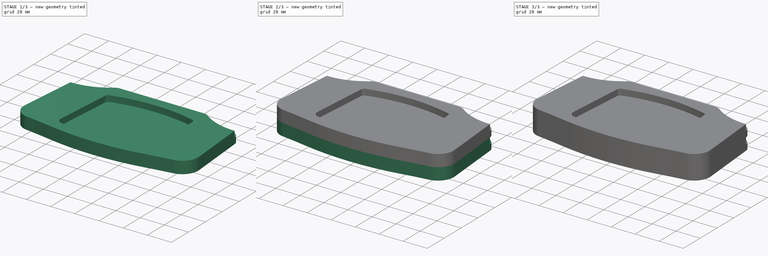
[diagram: build sequence overview — one tinted view per stage of 3, left to right]
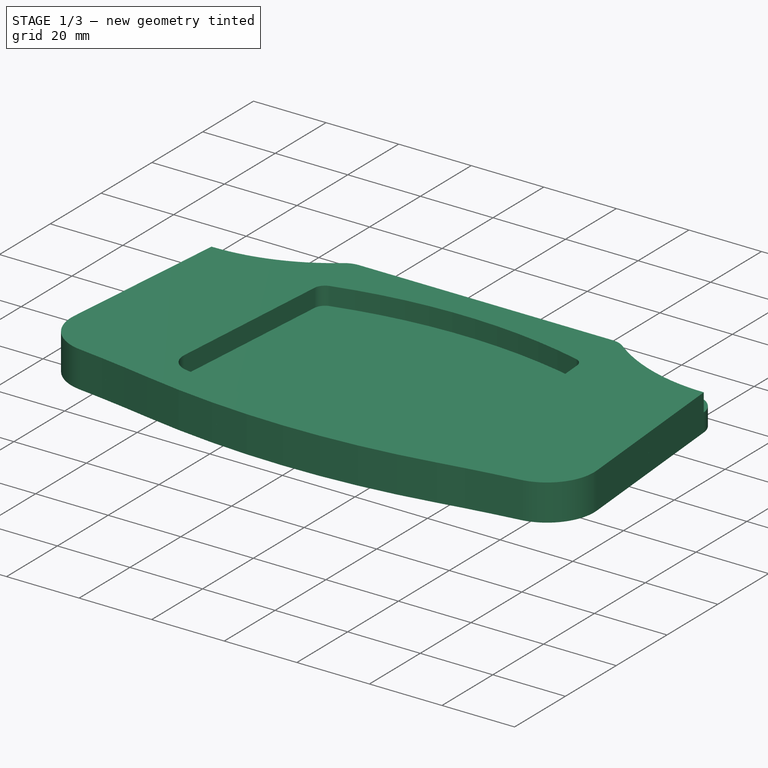
[diagram: stage 1 of 3 — iso view after this stage's code; geometry added in this stage tinted green]
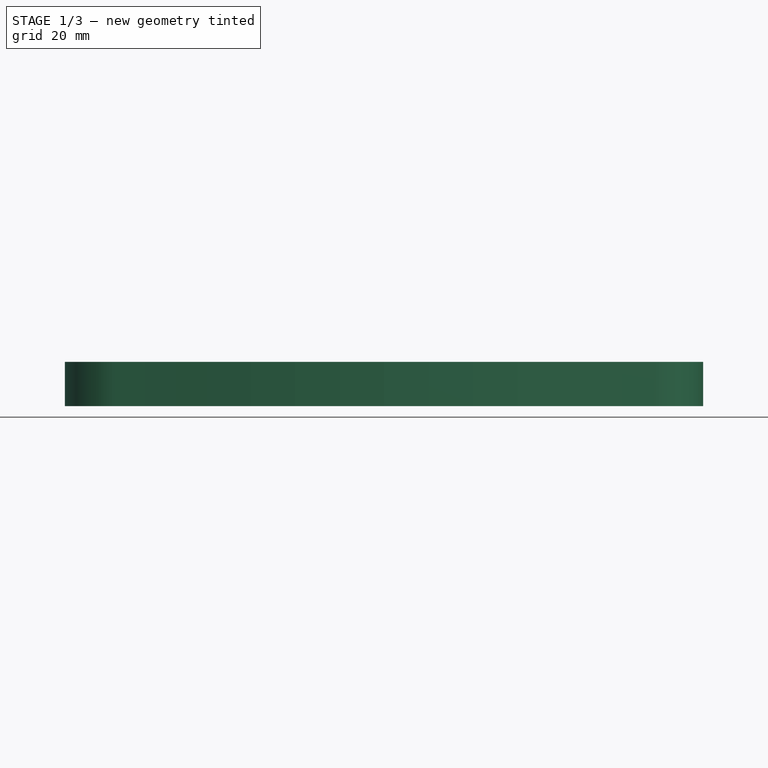
[diagram: stage 1 of 3 — front view after this stage's code; geometry added in this stage tinted green]
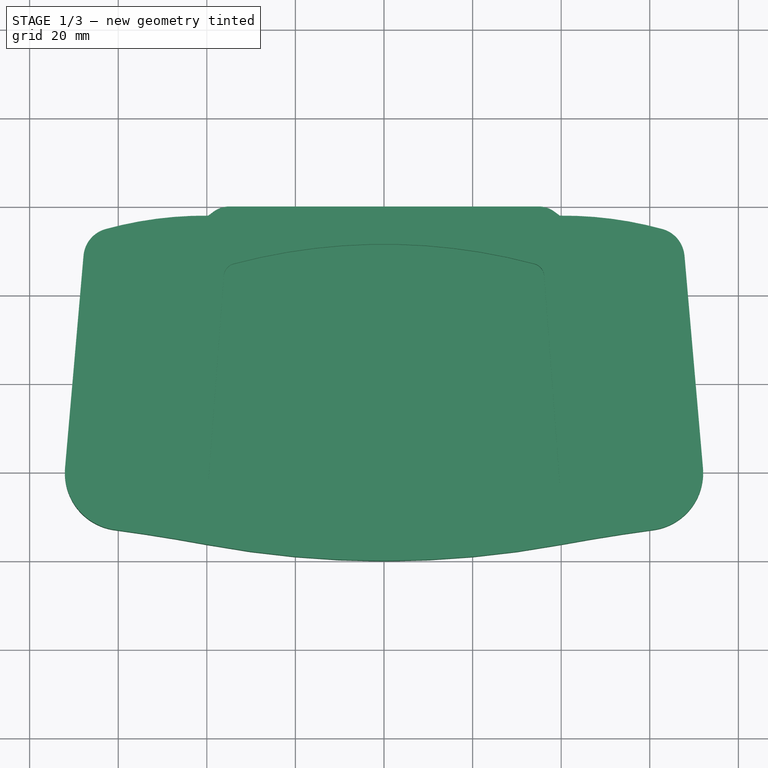
[diagram: stage 1 of 3 — top view after this stage's code; geometry added in this stage tinted green]
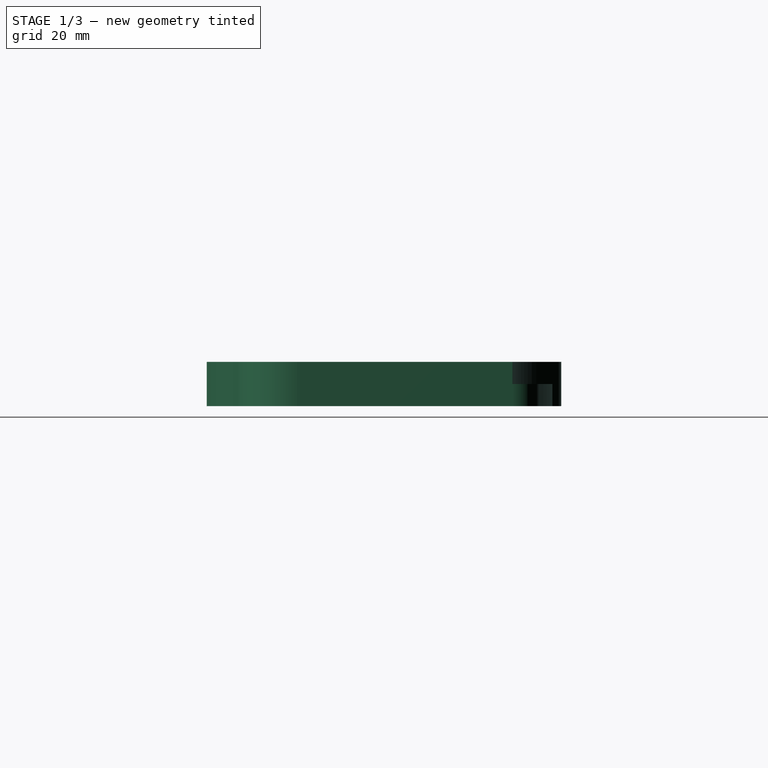
[diagram: stage 1 of 3 — right view after this stage's code; geometry added in this stage tinted green]
FCSTD DOCUMENT  (FreeCAD 0.20R29177 +426 (Git))
Label: GBA Icon
License: Creative Commons Attribution-NonCommercial-ShareAlike
LicenseURL: http://creativecommons.org/licenses/by-nc-sa/4.0/
objects: Sketcher::SketchObject×7, PartDesign::Pad×4, PartDesign::Body×3, PartDesign::Pocket×2, PartDesign::Fillet×1
note: 24 computed .brp shape members not serialized (recipe doc carries the construction recipe); baked Part::Feature solids carry a one-line shape summary decoded from their .brp

FEATURE [Sketcher::SketchObject] Sketch004  label="GBA Middle"
  ExternalGeometry = -> [Pocket001]
  FullyConstrained = true
  MapMode = 5
  Placement = pos=(0,0,10) rot=(0,0,1;0rad)
  Support = -> [Pocket001]
  sketch-geometry (22):
    g0: LineSegment StartX=-72 StartY=21.0109 StartZ=0 EndX=-67.8267 EndY=68.9925 EndZ=0
    g1: LineSegment StartX=72 StartY=21.0109 StartZ=0 EndX=67.8267 EndY=68.9925 EndZ=0
    g2: LineSegment StartX=34.9119 StartY=80 StartZ=0 EndX=-34.9119 EndY=80 EndZ=0
    g3: LineSegment StartX=-36.1577 StartY=64.3908 StartZ=0 EndX=-39.6184 EndY=18.1045 EndZ=0
    g4: LineSegment StartX=39.6184 StartY=18.1045 StartZ=0 EndX=36.1577 EndY=64.3907 EndZ=0
    g5: ArcOfCircle CenterX=33.1661 CenterY=64.1671 CenterZ=0 NormalX=0 NormalY=0 NormalZ=1 AngleXU=0 Radius=3 StartAngle=0.0746275 EndAngle=1.31098
    g6: ArcOfCircle CenterX=34.9119 CenterY=74 CenterZ=0 NormalX=0 NormalY=0 NormalZ=1 AngleXU=0 Radius=6 StartAngle=0.920899 EndAngle=1.5708
    g7: ArcOfCircle CenterX=-33.1661 CenterY=64.1671 CenterZ=0 NormalX=0 NormalY=0 NormalZ=1 AngleXU=0 Radius=3 StartAngle=1.83061 EndAngle=3.06696
    g8: ArcOfCircle CenterX=-34.9119 CenterY=74 CenterZ=0 NormalX=0 NormalY=0 NormalZ=1 AngleXU=0 Radius=6 StartAngle=1.5708 EndAngle=2.22069
    g9: ArcOfCircle CenterX=-67.5876 CenterY=116.992 CenterZ=0 NormalX=0 NormalY=0 NormalZ=1 AngleXU=0 Radius=48 StartAngle=4.70741 EndAngle=5.33543
    g10: ArcOfCircle CenterX=67.5876 CenterY=116.992 CenterZ=0 NormalX=0 NormalY=0 NormalZ=1 AngleXU=0 Radius=48 StartAngle=4.08935 EndAngle=4.71737
    g11: ArcOfCircle CenterX=59.0489 CenterY=19.8845 CenterZ=0 NormalX=0 NormalY=0 NormalZ=1 AngleXU=0 Radius=13 StartAngle=4.84579 EndAngle=6.36994
    g12: ArcOfCircle CenterX=33.6351 CenterY=17.6572 CenterZ=0 NormalX=0 NormalY=0 NormalZ=1 AngleXU=0 Radius=6 StartAngle=4.929 EndAngle=6.35781
    g13: ArcOfCircle CenterX=-33.6351 CenterY=17.6572 CenterZ=0 NormalX=0 NormalY=0 NormalZ=1 AngleXU=0 Radius=6 StartAngle=3.06696 EndAngle=4.49578
    g14: ArcOfCircle CenterX=-59.0489 CenterY=19.8845 CenterZ=0 NormalX=0 NormalY=0 NormalZ=1 AngleXU=0 Radius=13 StartAngle=3.05483 EndAngle=4.57898
    g15: ArcOfCircle CenterX=-4.01e-14 CenterY=219.231 CenterZ=0 NormalX=0 NormalY=0 NormalZ=1 AngleXU=0 Radius=219.231 StartAngle=4.52891 EndAngle=4.89587
    g16: ArcOfCircle CenterX=1.135e-13 CenterY=170.5 CenterZ=0 NormalX=0 NormalY=0 NormalZ=1 AngleXU=0 Radius=162.5 StartAngle=4.49578 EndAngle=4.929
    g17: ArcOfCircle CenterX=-2.44e-14 CenterY=-60.6 CenterZ=0 NormalX=0 NormalY=0 NormalZ=1 AngleXU=0 Radius=132.1 StartAngle=1.31098 EndAngle=1.83061
    g18: ArcOfCircle CenterX=-116.672 CenterY=-409.49 CenterZ=0 NormalX=0 NormalY=0 NormalZ=1 AngleXU=0 Radius=420.224 StartAngle=1.38731 EndAngle=1.43739
    g19: ArcOfCircle CenterX=116.672 CenterY=-409.49 CenterZ=0 NormalX=0 NormalY=0 NormalZ=1 AngleXU=0 Radius=420.224 StartAngle=1.7042 EndAngle=1.75428
    g20: ArcOfCircle CenterX=-67.5876 CenterY=116.992 CenterZ=0 NormalX=0 NormalY=0 NormalZ=1 AngleXU=0 Radius=48 StartAngle=5.33543 EndAngle=5.36229
    g21: ArcOfCircle CenterX=67.5876 CenterY=116.992 CenterZ=0 NormalX=0 NormalY=0 NormalZ=1 AngleXU=0 Radius=48 StartAngle=4.06249 EndAngle=4.08935
  constraints (61):
    c: Coincident(g0,g-17)
    c: Coincident(g0,g-16)
    c: Coincident(g1,g-22)
    c: Coincident(g1,g-22)
    c: Coincident(g2,g-13)
    c: Coincident(g2,g-14)
    c: Coincident(g3,g-5)
    c: Coincident(g3,g-6)
    c: Coincident(g4,g-9)
    c: Coincident(g4,g-10)
    c: Coincident(g5,g-10)
    c: Coincident(g5,g4)
    c: Coincident(g5,g-10)
    c: Coincident(g6,g-12)
    c: Coincident(g6,g2)
    c: Coincident(g6,g-12)
    c: Coincident(g7,g-3)
    c: Coincident(g7,g3)
    c: Coincident(g7,g-4)
    c: Coincident(g8,g-14)
    c: Coincident(g8,g-14)
    c: Coincident(g8,g2)
    c: Coincident(g9,g-15)
    c: Coincident(g9,g-15)
    c: Coincident(g9,g0)
    c: Coincident(g10,g-11)
    c: Coincident(g10,g-11)
    c: Coincident(g10,g1)
    c: Coincident(g11,g-21)
    c: Coincident(g11,g1)
    c: Coincident(g11,g-21)
    c: Coincident(g12,g-8)
    c: Coincident(g12,g4)
    c: Coincident(g12,g-8)
    c: Coincident(g13,g-6)
    c: Coincident(g13,g3)
    c: Coincident(g13,g-7)
    c: Coincident(g14,g-17)
    c: Coincident(g14,g-18)
    c: Coincident(g14,g0)
    c: Coincident(g15,g-19)
    c: Coincident(g15,g-19)
    c: Coincident(g15,g-20)
    c: Coincident(g16,g-7)
    c: Coincident(g16,g13)
    c: Coincident(g16,g12)
    c: Coincident(g17,g-4)
    c: Coincident(g17,g7)
    c: Coincident(g17,g5)
    c: Coincident(g18,g-18)
    c: Coincident(g18,g14)
    c: Coincident(g18,g15)
    c: Coincident(g19,g-20)
    c: Coincident(g19,g15)
    c: Coincident(g19,g11)
    c: Coincident(g20,g9)
    c: Coincident(g20,g8)
    c: Coincident(g20,g9)
    c: Coincident(g21,g10)
    c: Coincident(g21,g6)
    c: Coincident(g21,g10)
FEATURE [PartDesign::Body] Body
  Group = -> [Sketch,Pad,Fillet,Sketch001,Sketch002,Pocket,Pad001,Sketch003,Pocket001,Sketch004]
  Origin = -> Origin
  Tip = -> Pocket001
FEATURE [Sketcher::SketchObject] Sketch005  label="GBA OutLine001"
  FullyConstrained = false
  MapMode = 5
  Placement = pos=(0,0,10) rot=(0,0,1;0rad)
  sketch-geometry (16):
    g0: LineSegment StartX=-34.9119 StartY=80 StartZ=0 EndX=34.9119 EndY=80 EndZ=0
    g1: ArcOfCircle CenterX=34.9119 CenterY=74 CenterZ=0 NormalX=0 NormalY=0 NormalZ=1 AngleXU=0 Radius=6 StartAngle=0.920899 EndAngle=1.5708
    g2: ArcOfCircle CenterX=67.5876 CenterY=116.992 CenterZ=0 NormalX=0 NormalY=0 NormalZ=1 AngleXU=0 Radius=48 StartAngle=4.06249 EndAngle=4.08935
    g3: ArcOfCircle CenterX=40.4133 CenterY=-6.60259 CenterZ=0 NormalX=0 NormalY=0 NormalZ=1 AngleXU=0 Radius=84.6175 StartAngle=1.30272 EndAngle=1.58065
    g4: ArcOfCircle CenterX=61.0158 CenterY=68.4001 CenterZ=0 NormalX=0 NormalY=0 NormalZ=1 AngleXU=0 Radius=6.83658 StartAngle=0.0867591 EndAngle=1.30272
    g5: LineSegment StartX=67.8267 StartY=68.9925 StartZ=0 EndX=72 EndY=21.0109 EndZ=0
    g6: ArcOfCircle CenterX=59.0489 CenterY=19.8845 CenterZ=0 NormalX=0 NormalY=0 NormalZ=1 AngleXU=0 Radius=13 StartAngle=4.84579 EndAngle=6.36994
    g7: ArcOfCircle CenterX=116.672 CenterY=-409.49 CenterZ=0 NormalX=0 NormalY=0 NormalZ=1 AngleXU=0 Radius=420.224 StartAngle=1.7042 EndAngle=1.75428
    g8: ArcOfCircle CenterX=-4.01e-14 CenterY=219.231 CenterZ=0 NormalX=0 NormalY=0 NormalZ=1 AngleXU=0 Radius=219.231 StartAngle=4.52891 EndAngle=4.89587
    g9: ArcOfCircle CenterX=-116.672 CenterY=-409.49 CenterZ=0 NormalX=0 NormalY=0 NormalZ=1 AngleXU=0 Radius=420.224 StartAngle=1.38731 EndAngle=1.43739
    g10: ArcOfCircle CenterX=-59.0489 CenterY=19.8845 CenterZ=0 NormalX=0 NormalY=0 NormalZ=1 AngleXU=0 Radius=13 StartAngle=3.05483 EndAngle=4.57898
    g11: ArcOfCircle CenterX=-61.0158 CenterY=68.4001 CenterZ=0 NormalX=0 NormalY=0 NormalZ=1 AngleXU=0 Radius=6.83658 StartAngle=1.83887 EndAngle=3.05483
    g12: LineSegment StartX=-67.8267 StartY=68.9925 StartZ=0 EndX=-72 EndY=21.0109 EndZ=0
    g13: ArcOfCircle CenterX=-40.4133 CenterY=-6.60259 CenterZ=0 NormalX=0 NormalY=0 NormalZ=1 AngleXU=0 Radius=84.6175 StartAngle=1.56094 EndAngle=1.83887
    g14: ArcOfCircle CenterX=-34.9119 CenterY=74 CenterZ=0 NormalX=0 NormalY=0 NormalZ=1 AngleXU=0 Radius=6 StartAngle=1.5708 EndAngle=2.22069
    g15: ArcOfCircle CenterX=-67.5876 CenterY=116.992 CenterZ=0 NormalX=0 NormalY=0 NormalZ=1 AngleXU=0 Radius=48 StartAngle=5.33543 EndAngle=5.36229
  constraints (16):
    c: Coincident(g1,g0)
    c: Coincident(g2,g1)
    c: Coincident(g3,g2)
    c: Coincident(g4,g3)
    c: Coincident(g5,g4)
    c: Coincident(g6,g5)
    c: Coincident(g7,g6)
    c: Coincident(g8,g7)
    c: Coincident(g9,g8)
    c: Coincident(g10,g9)
    c: Coincident(g12,g11)
    c: Coincident(g12,g10)
    c: Coincident(g13,g11)
    c: Coincident(g14,g0)
    c: Coincident(g15,g14)
    c: Coincident(g15,g13)
FEATURE [PartDesign::Pad] Pad002
  Direction = (1,1,1)
  Length = 5
  Length2 = 100
  Placement = pos=(0,0,10) rot=(0,0,1;0rad)
  Profile = -> Sketch005
  Type = 0
FEATURE [PartDesign::Body] Body001
  Group = -> [Sketch005,Pad002]
  Origin = -> Origin001
  Tip = -> Pad002
FEATURE [Sketcher::SketchObject] Sketch009  label="GBA Middle001"
  FullyConstrained = false
  MapMode = 5
  Placement = pos=(0,0,10) rot=(0,0,1;0rad)
  sketch-geometry (22):
    g0: LineSegment StartX=-72 StartY=21.0109 StartZ=0 EndX=-67.8267 EndY=68.9925 EndZ=0
    g1: LineSegment StartX=72 StartY=21.0109 StartZ=0 EndX=67.8267 EndY=68.9925 EndZ=0
    g2: LineSegment StartX=34.9119 StartY=80 StartZ=0 EndX=-34.9119 EndY=80 EndZ=0
    g3: LineSegment StartX=-36.1577 StartY=64.3908 StartZ=0 EndX=-39.6184 EndY=18.1045 EndZ=0
    g4: LineSegment StartX=39.6184 StartY=18.1045 StartZ=0 EndX=36.1577 EndY=64.3907 EndZ=0
    g5: ArcOfCircle CenterX=33.1661 CenterY=64.1671 CenterZ=0 NormalX=0 NormalY=0 NormalZ=1 AngleXU=0 Radius=3 StartAngle=0.0746275 EndAngle=1.31098
    g6: ArcOfCircle CenterX=34.9119 CenterY=74 CenterZ=0 NormalX=0 NormalY=0 NormalZ=1 AngleXU=0 Radius=6 StartAngle=0.920899 EndAngle=1.5708
    g7: ArcOfCircle CenterX=-33.1661 CenterY=64.1671 CenterZ=0 NormalX=0 NormalY=0 NormalZ=1 AngleXU=0 Radius=3 StartAngle=1.83061 EndAngle=3.06696
    g8: ArcOfCircle CenterX=-34.9119 CenterY=74 CenterZ=0 NormalX=0 NormalY=0 NormalZ=1 AngleXU=0 Radius=6 StartAngle=1.5708 EndAngle=2.22069
    g9: ArcOfCircle CenterX=-67.5876 CenterY=116.992 CenterZ=0 NormalX=0 NormalY=0 NormalZ=1 AngleXU=0 Radius=48 StartAngle=4.70741 EndAngle=5.33543
    g10: ArcOfCircle CenterX=67.5876 CenterY=116.992 CenterZ=0 NormalX=0 NormalY=0 NormalZ=1 AngleXU=0 Radius=48 StartAngle=4.08935 EndAngle=4.71737
    g11: ArcOfCircle CenterX=59.0489 CenterY=19.8845 CenterZ=0 NormalX=0 NormalY=0 NormalZ=1 AngleXU=0 Radius=13 StartAngle=4.84579 EndAngle=6.36994
    g12: ArcOfCircle CenterX=33.6351 CenterY=17.6572 CenterZ=0 NormalX=0 NormalY=0 NormalZ=1 AngleXU=0 Radius=6 StartAngle=4.929 EndAngle=6.35781
    g13: ArcOfCircle CenterX=-33.6351 CenterY=17.6572 CenterZ=0 NormalX=0 NormalY=0 NormalZ=1 AngleXU=0 Radius=6 StartAngle=3.06696 EndAngle=4.49578
    g14: ArcOfCircle CenterX=-59.0489 CenterY=19.8845 CenterZ=0 NormalX=0 NormalY=0 NormalZ=1 AngleXU=0 Radius=13 StartAngle=3.05483 EndAngle=4.57898
    g15: ArcOfCircle CenterX=-4.01e-14 CenterY=219.231 CenterZ=0 NormalX=0 NormalY=0 NormalZ=1 AngleXU=0 Radius=219.231 StartAngle=4.52891 EndAngle=4.89587
    g16: ArcOfCircle CenterX=1.135e-13 CenterY=170.5 CenterZ=0 NormalX=0 NormalY=0 NormalZ=1 AngleXU=0 Radius=162.5 StartAngle=4.49578 EndAngle=4.929
    g17: ArcOfCircle CenterX=-2.44e-14 CenterY=-60.6 CenterZ=0 NormalX=0 NormalY=0 NormalZ=1 AngleXU=0 Radius=132.1 StartAngle=1.31098 EndAngle=1.83061
    g18: ArcOfCircle CenterX=-116.672 CenterY=-409.49 CenterZ=0 NormalX=0 NormalY=0 NormalZ=1 AngleXU=0 Radius=420.224 StartAngle=1.38731 EndAngle=1.43739
    g19: ArcOfCircle CenterX=116.672 CenterY=-409.49 CenterZ=0 NormalX=0 NormalY=0 NormalZ=1 AngleXU=0 Radius=420.224 StartAngle=1.7042 EndAngle=1.75428
    g20: ArcOfCircle CenterX=-67.5876 CenterY=116.992 CenterZ=0 NormalX=0 NormalY=0 NormalZ=1 AngleXU=0 Radius=48 StartAngle=5.33543 EndAngle=5.36229
    g21: ArcOfCircle CenterX=67.5876 CenterY=116.992 CenterZ=0 NormalX=0 NormalY=0 NormalZ=1 AngleXU=0 Radius=48 StartAngle=4.06249 EndAngle=4.08935
  constraints (24):
    c: Coincident(g5,g4)
    c: Coincident(g6,g2)
    c: Coincident(g7,g3)
    c: Coincident(g8,g2)
    c: Coincident(g9,g0)
    c: Coincident(g10,g1)
    c: Coincident(g11,g1)
    c: Coincident(g12,g4)
    c: Coincident(g13,g3)
    c: Coincident(g14,g0)
    c: Coincident(g16,g13)
    c: Coincident(g16,g12)
    c: Coincident(g17,g7)
    c: Coincident(g17,g5)
    c: Coincident(g18,g14)
    c: Coincident(g18,g15)
    c: Coincident(g19,g15)
    c: Coincident(g19,g11)
    c: Coincident(g20,g9)
    c: Coincident(g20,g8)
    c: Coincident(g20,g9)
    c: Coincident(g21,g10)
    c: Coincident(g21,g6)
    c: Coincident(g21,g10)
FEATURE [PartDesign::Pad] Pad003
  Direction = (1,1,1)
  Length = 10
  Length2 = 100
  Placement = pos=(0,0,10) rot=(0,0,1;0rad)
  Profile = -> Sketch009
  Type = 0
FEATURE [PartDesign::Body] Body002
  Group = -> [Sketch009,Pad003]
  Origin = -> Origin002
  Tip = -> Pad003
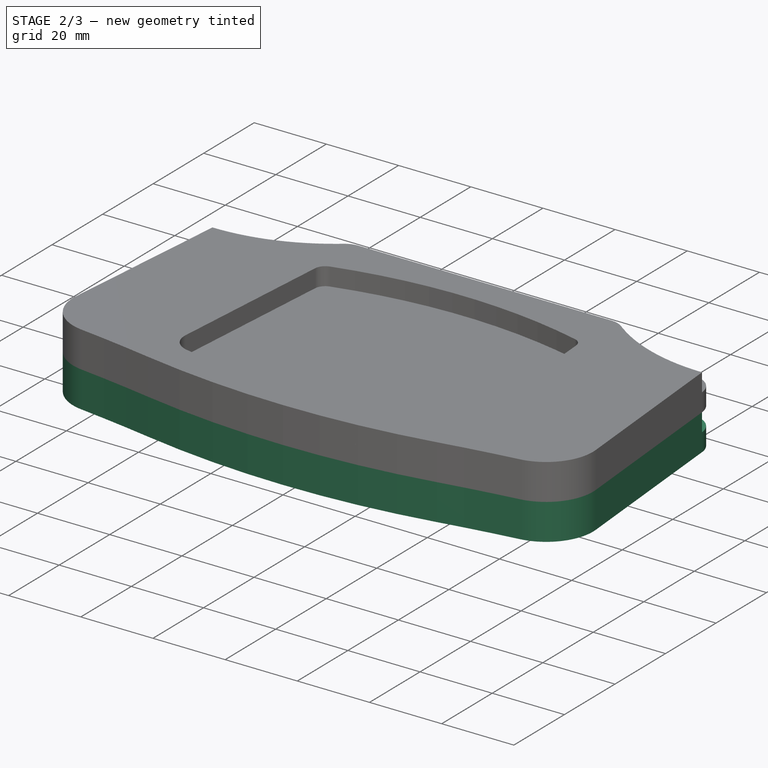
[diagram: stage 2 of 3 — iso view after this stage's code; geometry added in this stage tinted green]
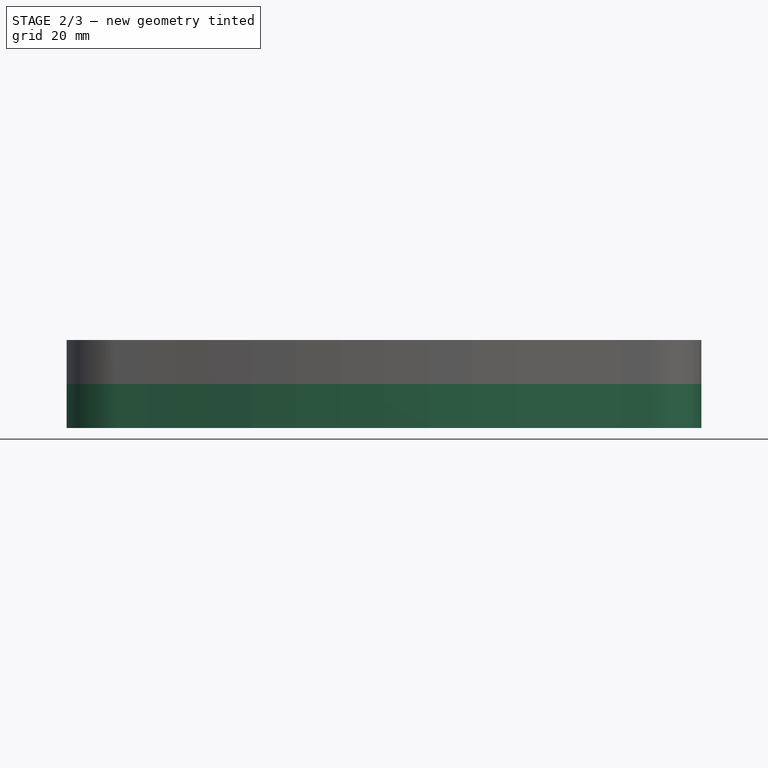
[diagram: stage 2 of 3 — front view after this stage's code; geometry added in this stage tinted green]
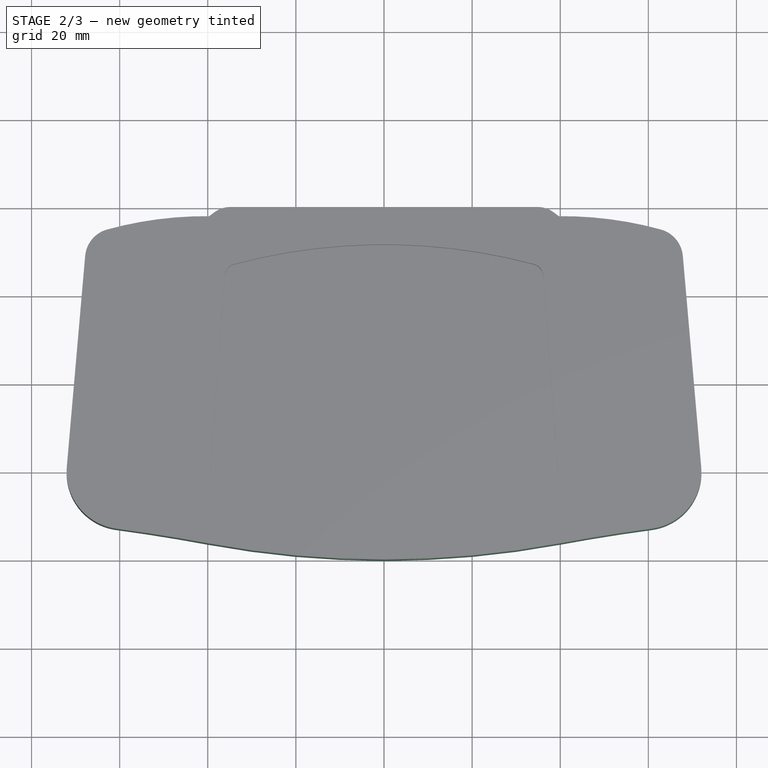
[diagram: stage 2 of 3 — top view after this stage's code; geometry added in this stage tinted green]
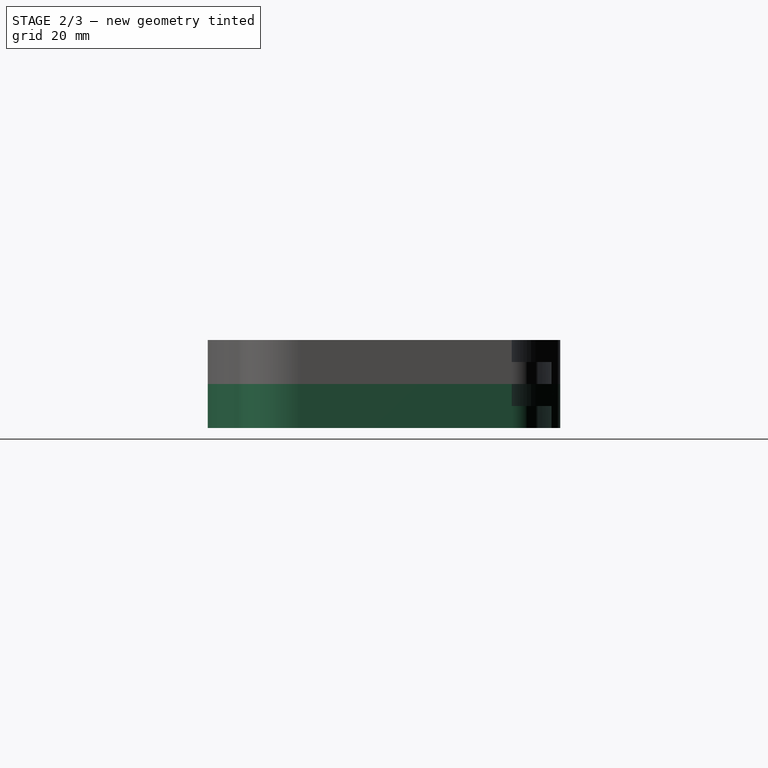
[diagram: stage 2 of 3 — right view after this stage's code; geometry added in this stage tinted green]
FEATURE [Sketcher::SketchObject] Sketch  label="GBA Back"
  FullyConstrained = true
  MapMode = 5
  Support = -> [XY_Plane]
  sketch-geometry (41):
    g0: LineSegment StartX=0 StartY=0 StartZ=0 EndX=0 EndY=7 EndZ=0
    g1: LineSegment StartX=0 StartY=0 StartZ=0 EndX=-40 EndY=0 EndZ=0
    g2: LineSegment StartX=0 StartY=0 StartZ=0 EndX=40 EndY=0 EndZ=0
    g3: ArcOfCircle CenterX=-4.01e-14 CenterY=219.231 CenterZ=0 NormalX=0 NormalY=0 NormalZ=1 AngleXU=0 Radius=219.231 StartAngle=4.52891 EndAngle=4.89587
    g4: ArcOfCircle CenterX=116.672 CenterY=-409.49 CenterZ=0 NormalX=0 NormalY=0 NormalZ=1 AngleXU=0 Radius=420.224 StartAngle=1.7042 EndAngle=1.75428
    g5: ArcOfCircle CenterX=-116.672 CenterY=-409.49 CenterZ=0 NormalX=0 NormalY=0 NormalZ=1 AngleXU=0 Radius=420.224 StartAngle=1.38731 EndAngle=1.43739
    g6: LineSegment StartX=0 StartY=7 StartZ=0 EndX=0 EndY=67 EndZ=0
    g7: LineSegment StartX=-68 StartY=67 StartZ=0 EndX=68 EndY=67 EndZ=0
    g8: LineSegment StartX=72 StartY=21.0109 StartZ=0 EndX=68 EndY=67 EndZ=0
    g9: LineSegment StartX=-68 StartY=67 StartZ=0 EndX=-72 EndY=21.0109 EndZ=0
    g10: ArcOfCircle CenterX=59.0489 CenterY=19.8845 CenterZ=0 NormalX=0 NormalY=0 NormalZ=1 AngleXU=0 Radius=13 StartAngle=4.84579 EndAngle=6.36994
    g11: LineSegment StartX=60.778 StartY=7 StartZ=0 EndX=72 EndY=7 EndZ=0
    g12: LineSegment StartX=72 StartY=7 StartZ=0 EndX=72 EndY=21.0109 EndZ=0
    g13: ArcOfCircle CenterX=-59.0489 CenterY=19.8845 CenterZ=0 NormalX=0 NormalY=0 NormalZ=1 AngleXU=0 Radius=13 StartAngle=3.05483 EndAngle=4.57898
    g14: LineSegment StartX=-72 StartY=21.0109 StartZ=0 EndX=-72 EndY=7 EndZ=0
    g15: LineSegment StartX=-60.778 StartY=7 StartZ=0 EndX=-72 EndY=7 EndZ=0
    g16: LineSegment StartX=68 StartY=67 StartZ=0 EndX=68 EndY=78 EndZ=0
    g17: LineSegment StartX=68 StartY=78 StartZ=0 EndX=42 EndY=78 EndZ=0
    g18: LineSegment StartX=68 StartY=67 StartZ=0 EndX=67.8267 EndY=68.9925 EndZ=0
    g19: LineSegment StartX=-40 StartY=3.68 StartZ=0 EndX=-40 EndY=0 EndZ=0
    g20: LineSegment StartX=40 StartY=0 StartZ=0 EndX=40 EndY=3.68 EndZ=0
    g21: ArcOfCircle CenterX=61.0158 CenterY=68.4001 CenterZ=0 NormalX=0 NormalY=0 NormalZ=1 AngleXU=0 Radius=6.83658 StartAngle=0.0867591 EndAngle=1.30272
    g22: ArcOfCircle CenterX=40.4133 CenterY=-6.60259 CenterZ=0 NormalX=0 NormalY=0 NormalZ=1 AngleXU=0 Radius=84.6175 StartAngle=1.30272 EndAngle=1.58065
    g23: LineSegment StartX=-68 StartY=67 StartZ=0 EndX=-67.8267 EndY=68.9925 EndZ=0
    g24: ArcOfCircle CenterX=-61.0158 CenterY=68.4001 CenterZ=0 NormalX=0 NormalY=0 NormalZ=1 AngleXU=0 Radius=6.83658 StartAngle=1.83887 EndAngle=3.05483
    g25: ArcOfCircle CenterX=-40.4133 CenterY=-6.60259 CenterZ=0 NormalX=0 NormalY=0 NormalZ=1 AngleXU=0 Radius=84.6175 StartAngle=1.56094 EndAngle=1.83887
    g26: LineSegment StartX=-68 StartY=67 StartZ=0 EndX=-68 EndY=78 EndZ=0
    g27: LineSegment StartX=-68 StartY=78 StartZ=0 EndX=-42 EndY=78 EndZ=0
    g28: LineSegment StartX=62.8267 StartY=74.9925 StartZ=0 EndX=62.8267 EndY=68.9925 EndZ=0
    g29: LineSegment StartX=67.8267 StartY=68.9925 StartZ=0 EndX=62.8267 EndY=68.9925 EndZ=0
    g30: LineSegment StartX=-67.8267 StartY=68.9925 StartZ=0 EndX=-62.8267 EndY=68.9925 EndZ=0
    g31: LineSegment StartX=-62.8267 StartY=68.9925 StartZ=0 EndX=-62.8267 EndY=74.9925 EndZ=0
    g32: LineSegment StartX=42 StartY=78 StartZ=0 EndX=42 EndY=80 EndZ=0
    g33: LineSegment StartX=42 StartY=80 StartZ=0 EndX=37 EndY=80 EndZ=0
    g34: LineSegment StartX=-42 StartY=78 StartZ=0 EndX=-42 EndY=80 EndZ=0
    g35: LineSegment StartX=-42 StartY=80 StartZ=0 EndX=-37 EndY=80 EndZ=0
    g36: LineSegment StartX=37 StartY=80 StartZ=0 EndX=-37 EndY=80 EndZ=0
    g37: ArcOfCircle CenterX=-67.5876 CenterY=116.992 CenterZ=0 NormalX=0 NormalY=0 NormalZ=1 AngleXU=0 Radius=48 StartAngle=4.70741 EndAngle=5.4033
    g38: ArcOfCircle CenterX=67.5876 CenterY=116.992 CenterZ=0 NormalX=0 NormalY=0 NormalZ=1 AngleXU=0 Radius=48 StartAngle=4.02148 EndAngle=4.71737
    g39: ArcOfCircle CenterX=-67.5876 CenterY=116.992 CenterZ=0 NormalX=0 NormalY=0 NormalZ=1 AngleXU=0 Radius=48 StartAngle=5.33543 EndAngle=5.4033
    g40: ArcOfCircle CenterX=67.5876 CenterY=116.992 CenterZ=0 NormalX=0 NormalY=0 NormalZ=1 AngleXU=0 Radius=48 StartAngle=4.02148 EndAngle=4.08935
  constraints (120):
    c: Coincident(g0,g-1)
    c: DistanceY(g0,g0) = 7
    c: Coincident(g1,g-1)
    c: PointOnObject(g1,g-1)
    c: Coincident(g2,g-1)
    c: PointOnObject(g2,g-1)
    c: DistanceX(g2,g2) = 40
    c: Equal(g1,g2)
    c: PointOnObject(g-1,g3)
    c: Symmetric(g11,g14,g0)
    c: DistanceX(g14,g11) = 144
    c: Coincident(g4,g3)
    c: Coincident(g5,g3)
    c: PointOnObject(g0,g-2)
    c: Equal(g5,g4)
    c: Coincident(g6,g0)
    c: PointOnObject(g6,g-2)
    c: DistanceY(g6,g6) = 60
    c: Horizontal(g7)
    c: DistanceX(g7,g7) = 136
    c: Symmetric(g7,g7,g6)
    c: Coincident(g8,g7)
    c: Coincident(g9,g7)
    c: Coincident(g11,g4)
    c: Horizontal(g11)
    c: Coincident(g12,g11)
    c: Coincident(g12,g8)
    c: Vertical(g12)
    c: Coincident(g10,g8)
    c: Coincident(g10,g4)
    c: Tangent(g3,g4)
    c: Radius(g10) = 13
    c: Tangent(g9,g13) = -1.5708
    c: Coincident(g14,g9)
    c: Coincident(g15,g5)
    c: Coincident(g15,g14)
    c: Vertical(g14)
    c: Coincident(g13,g5)
    c: Equal(g13,g10)
    c: Vertical(g3,g2)
    c: Vertical(g1,g3)
    c: Equal(g15,g11)
    c: Coincident(g16,g8)
    c: Vertical(g16)
    c: Coincident(g17,g16)
    c: Horizontal(g17)
    c: DistanceY(g16,g16) = 11
    c: DistanceX(g17,g17) = 26
    c: Coincident(g18,g8)
    c: Distance(g18) = 2
    c: Parallel(g18,g8)
    c: Coincident(g19,g3)
    c: Coincident(g19,g1)
    c: Coincident(g20,g2)
    c: Coincident(g20,g3)
    c: Coincident(g21,g18)
    c: Coincident(g22,g21)
    c: Tangent(g21,g18)
    c: Coincident(g23,g9)
    c: Parallel(g23,g9)
    c: Tangent(g22,g21,g21) = -1.5708
    c: Equal(g23,g18)
    c: Coincident(g24,g23)
    c: Coincident(g25,g24)
    c: Coincident(g26,g9)
    c: Vertical(g26)
    c: Coincident(g27,g26)
    c: Horizontal(g27)
    c: Equal(g27,g17)
    c: Equal(g26,g16)
    c: Coincident(g28,g21)
    c: Vertical(g28)
    c: Coincident(g29,g18)
    c: Coincident(g29,g28)
    c: Horizontal(g29)
    c: DistanceX(g29,g29) = 5
    c: DistanceY(g28,g28) = 6
    c: Coincident(g30,g23)
    c: Horizontal(g30)
    c: Coincident(g31,g30)
    c: Coincident(g31,g24)
    c: Tangent(g23,g24,g23) = 1.5708
    c: Tangent(g24,g25,g24) = -1.5708
    c: Equal(g30,g29)
    c: Equal(g28,g31)
    c: Tangent(g10,g8,g8) = -1.5708
    c: Coincident(g32,g17)
    c: Vertical(g32)
    c: Coincident(g33,g32)
    c: Horizontal(g33)
    c: Coincident(g34,g27)
    c: Vertical(g34)
    c: Coincident(g35,g34)
    c: Horizontal(g35)
    c: Equal(g34,g32)
    c: Equal(g33,g35)
    c: DistanceX(g33,g33) = 5
    c: DistanceY(g32,g32) = 2
    c: Coincident(g36,g33)
    c: Coincident(g36,g35)
    c: Coincident(g37,g23)
    c: Coincident(g37,g36)
    c: Coincident(g38,g36)
    c: Coincident(g38,g18)
    c: Radius(g38) = 48
    c: Equal(g37,g38)
    c: Horizontal(g13,g10)
    c: Horizontal(g22,g25)
    c: Horizontal(g15)
    c: Tangent(g13,g5,g5) = 1.5708
    c: Tangent(g4,g10,g4) = 1.5708
    c: Vertical(g31)
    c: Coincident(g39,g37)
    c: Coincident(g39,g36)
    c: Coincident(g39,g25)
    c: Coincident(g40,g38)
    c: Coincident(g40,g36)
    c: Coincident(g40,g22)
    c: PointOnObject(g27,g25)
    c: DistanceY(g20,g20) = 3.68
FEATURE [PartDesign::Pad] Pad
  Direction = (1,1,1)
  Length = 10
  Length2 = 100
  Profile = -> Sketch
  Type = 0
FEATURE [PartDesign::Fillet] Fillet
  Base = -> Pad [Edge32,Edge35]
  BaseFeature = -> Pad
  Radius = 6
  SupportTransform = false
  UseAllEdges = false
FEATURE [Sketcher::SketchObject] Sketch001  label="GBA OutLine"
  ExternalGeometry = -> [Fillet]
  FullyConstrained = true
  MapMode = 5
  Placement = pos=(0,0,10) rot=(0,0,1;0rad)
  Support = -> [Fillet]
  sketch-geometry (16):
    g0: LineSegment StartX=-34.9119 StartY=80 StartZ=0 EndX=34.9119 EndY=80 EndZ=0
    g1: ArcOfCircle CenterX=34.9119 CenterY=74 CenterZ=0 NormalX=0 NormalY=0 NormalZ=1 AngleXU=0 Radius=6 StartAngle=0.920899 EndAngle=1.5708
    g2: ArcOfCircle CenterX=67.5876 CenterY=116.992 CenterZ=0 NormalX=0 NormalY=0 NormalZ=1 AngleXU=0 Radius=48 StartAngle=4.06249 EndAngle=4.08935
    g3: ArcOfCircle CenterX=40.4133 CenterY=-6.60259 CenterZ=0 NormalX=0 NormalY=0 NormalZ=1 AngleXU=0 Radius=84.6175 StartAngle=1.30272 EndAngle=1.58065
    g4: ArcOfCircle CenterX=61.0158 CenterY=68.4001 CenterZ=0 NormalX=0 NormalY=0 NormalZ=1 AngleXU=0 Radius=6.83658 StartAngle=0.0867591 EndAngle=1.30272
    g5: LineSegment StartX=67.8267 StartY=68.9925 StartZ=0 EndX=72 EndY=21.0109 EndZ=0
    g6: ArcOfCircle CenterX=59.0489 CenterY=19.8845 CenterZ=0 NormalX=0 NormalY=0 NormalZ=1 AngleXU=0 Radius=13 StartAngle=4.84579 EndAngle=6.36994
    g7: ArcOfCircle CenterX=116.672 CenterY=-409.49 CenterZ=0 NormalX=0 NormalY=0 NormalZ=1 AngleXU=0 Radius=420.224 StartAngle=1.7042 EndAngle=1.75428
    g8: ArcOfCircle CenterX=-4.01e-14 CenterY=219.231 CenterZ=0 NormalX=0 NormalY=0 NormalZ=1 AngleXU=0 Radius=219.231 StartAngle=4.52891 EndAngle=4.89587
    g9: ArcOfCircle CenterX=-116.672 CenterY=-409.49 CenterZ=0 NormalX=0 NormalY=0 NormalZ=1 AngleXU=0 Radius=420.224 StartAngle=1.38731 EndAngle=1.43739
    g10: ArcOfCircle CenterX=-59.0489 CenterY=19.8845 CenterZ=0 NormalX=0 NormalY=0 NormalZ=1 AngleXU=0 Radius=13 StartAngle=3.05483 EndAngle=4.57898
    g11: ArcOfCircle CenterX=-61.0158 CenterY=68.4001 CenterZ=0 NormalX=0 NormalY=0 NormalZ=1 AngleXU=0 Radius=6.83658 StartAngle=1.83887 EndAngle=3.05483
    g12: LineSegment StartX=-67.8267 StartY=68.9925 StartZ=0 EndX=-72 EndY=21.0109 EndZ=0
    g13: ArcOfCircle CenterX=-40.4133 CenterY=-6.60259 CenterZ=0 NormalX=0 NormalY=0 NormalZ=1 AngleXU=0 Radius=84.6175 StartAngle=1.56094 EndAngle=1.83887
    g14: ArcOfCircle CenterX=-34.9119 CenterY=74 CenterZ=0 NormalX=0 NormalY=0 NormalZ=1 AngleXU=0 Radius=6 StartAngle=1.5708 EndAngle=2.22069
    g15: ArcOfCircle CenterX=-67.5876 CenterY=116.992 CenterZ=0 NormalX=0 NormalY=0 NormalZ=1 AngleXU=0 Radius=48 StartAngle=5.33543 EndAngle=5.36229
  constraints (45):
    c: Coincident(g0,g-3)
    c: Coincident(g0,g-3)
    c: Coincident(g1,g-4)
    c: Coincident(g1,g0)
    c: Coincident(g1,g-4)
    c: Coincident(g2,g-5)
    c: Coincident(g2,g1)
    c: Coincident(g2,g-5)
    c: Coincident(g3,g-6)
    c: Coincident(g3,g-6)
    c: Coincident(g3,g2)
    c: Coincident(g4,g-7)
    c: Coincident(g4,g3)
    c: Coincident(g4,g-7)
    c: Coincident(g5,g4)
    c: Coincident(g5,g-8)
    c: Coincident(g6,g-9)
    c: Coincident(g6,g5)
    c: Coincident(g6,g-9)
    c: Coincident(g7,g-10)
    c: Coincident(g7,g-10)
    c: Coincident(g7,g6)
    c: Coincident(g8,g-11)
    c: Coincident(g8,g7)
    c: Coincident(g8,g-11)
    c: Coincident(g9,g-12)
    c: Coincident(g9,g-12)
    c: Coincident(g9,g8)
    c: Coincident(g10,g-13)
    c: Coincident(g10,g-13)
    c: Coincident(g10,g9)
    c: Coincident(g11,g-14)
    c: Coincident(g11,g-14)
    c: Coincident(g11,g-14)
    c: Coincident(g12,g11)
    c: Coincident(g12,g10)
    c: Coincident(g13,g-16)
    c: Coincident(g13,g11)
    c: Coincident(g13,g-16)
    c: Coincident(g14,g-17)
    c: Coincident(g14,g0)
    c: Coincident(g14,g-17)
    c: Coincident(g15,g-18)
    c: Coincident(g15,g14)
    c: Coincident(g15,g13)
FEATURE [Sketcher::SketchObject] Sketch002
  ExternalGeometry = -> [Fillet]
  FullyConstrained = true
  MapMode = 5
  Placement = pos=(0,0,10) rot=(0,0,1;0rad)
  Support = -> [Fillet]
  sketch-geometry (29):
    g0: ArcOfCircle CenterX=40.4133 CenterY=-6.60259 CenterZ=0 NormalX=0 NormalY=0 NormalZ=1 AngleXU=0 Radius=84.6175 StartAngle=1.30272 EndAngle=1.58065
    g1: ArcOfCircle CenterX=61.0158 CenterY=68.4001 CenterZ=0 NormalX=0 NormalY=0 NormalZ=1 AngleXU=0 Radius=6.83658 StartAngle=0.0867591 EndAngle=1.30272
    g2: ArcOfCircle CenterX=67.5876 CenterY=116.992 CenterZ=0 NormalX=0 NormalY=0 NormalZ=1 AngleXU=0 Radius=48 StartAngle=4.08935 EndAngle=4.71737
    g3: ArcOfCircle CenterX=-67.5876 CenterY=116.992 CenterZ=0 NormalX=0 NormalY=0 NormalZ=1 AngleXU=0 Radius=48 StartAngle=4.70741 EndAngle=5.33543
    g4: ArcOfCircle CenterX=-61.0158 CenterY=68.4001 CenterZ=0 NormalX=0 NormalY=0 NormalZ=1 AngleXU=0 Radius=6.83658 StartAngle=1.83887 EndAngle=3.05483
    g5: ArcOfCircle CenterX=-40.4133 CenterY=-6.60259 CenterZ=0 NormalX=0 NormalY=0 NormalZ=1 AngleXU=0 Radius=84.6175 StartAngle=1.56094 EndAngle=1.83887
    g6: LineSegment StartX=0 StartY=0 StartZ=0 EndX=0 EndY=8 EndZ=0
    g7: LineSegment StartX=0 StartY=8 StartZ=0 EndX=0 EndY=13 EndZ=0
    g8: LineSegment StartX=0 StartY=13 StartZ=0 EndX=40 EndY=13 EndZ=0
    g9: LineSegment StartX=0 StartY=13 StartZ=0 EndX=-40 EndY=13 EndZ=0
    g10: ArcOfCircle CenterX=1.135e-13 CenterY=170.5 CenterZ=0 NormalX=0 NormalY=0 NormalZ=1 AngleXU=0 Radius=162.5 StartAngle=4.49578 EndAngle=4.929
    g11: LineSegment StartX=0 StartY=80 StartZ=0 EndX=0 EndY=71.5 EndZ=0
    g12: LineSegment StartX=0 StartY=71.5 StartZ=0 EndX=36 EndY=71.5 EndZ=0
    g13: LineSegment StartX=0 StartY=71.5 StartZ=0 EndX=-36 EndY=71.5 EndZ=0
    g14: LineSegment StartX=-36 StartY=71.5 StartZ=0 EndX=-36 EndY=66.5 EndZ=0
    g15: LineSegment StartX=36 StartY=71.5 StartZ=0 EndX=36 EndY=66.5 EndZ=0
    g16: ArcOfCircle CenterX=-2.44e-14 CenterY=-60.6 CenterZ=0 NormalX=0 NormalY=0 NormalZ=1 AngleXU=0 Radius=132.1 StartAngle=1.31098 EndAngle=1.83061
    g17: LineSegment StartX=-36.1577 StartY=64.3908 StartZ=0 EndX=-39.6184 EndY=18.1045 EndZ=0
    g18: LineSegment StartX=39.6184 StartY=18.1045 StartZ=0 EndX=36.1577 EndY=64.3907 EndZ=0
    g19: ArcOfCircle CenterX=-33.1661 CenterY=64.1671 CenterZ=0 NormalX=0 NormalY=0 NormalZ=1 AngleXU=0 Radius=3 StartAngle=1.83061 EndAngle=3.06696
    g20: ArcOfCircle CenterX=33.1661 CenterY=64.1671 CenterZ=0 NormalX=0 NormalY=0 NormalZ=1 AngleXU=0 Radius=3 StartAngle=0.0746275 EndAngle=1.31098
    g21: LineSegment StartX=36 StartY=66.5 StartZ=0 EndX=36.1577 EndY=64.3907 EndZ=0
    g22: LineSegment StartX=-36.1577 StartY=64.3908 StartZ=0 EndX=-36 EndY=66.5 EndZ=0
    g23: ArcOfCircle CenterX=7.7e-15 CenterY=-60.6 CenterZ=0 NormalX=0 NormalY=0 NormalZ=1 AngleXU=0 Radius=132.1 StartAngle=1.29478 EndAngle=1.84681
    g24: ArcOfCircle CenterX=-33.6351 CenterY=17.6572 CenterZ=0 NormalX=0 NormalY=0 NormalZ=1 AngleXU=0 Radius=6 StartAngle=3.06696 EndAngle=4.49578
    g25: ArcOfCircle CenterX=33.6351 CenterY=17.6572 CenterZ=0 NormalX=0 NormalY=0 NormalZ=1 AngleXU=0 Radius=6 StartAngle=4.929 EndAngle=6.35781
    g26: LineSegment StartX=39.6184 StartY=18.1045 StartZ=0 EndX=40 EndY=13 EndZ=0
    g27: LineSegment StartX=-40 StartY=13 StartZ=0 EndX=-39.6184 EndY=18.1045 EndZ=0
    g28: ArcOfCircle CenterX=2.95e-14 CenterY=170.5 CenterZ=0 NormalX=0 NormalY=0 NormalZ=1 AngleXU=0 Radius=162.5 StartAngle=4.46368 EndAngle=4.9611
  constraints (82):
    c: Coincident(g0,g-6)
    c: Coincident(g0,g-6)
    c: Coincident(g0,g-7)
    c: Coincident(g1,g-7)
    c: Coincident(g1,g0)
    c: Coincident(g1,g-7)
    c: Coincident(g2,g-5)
    c: Coincident(g2,g1)
    c: Coincident(g2,g0)
    c: Coincident(g3,g-8)
    c: Coincident(g3,g-8)
    c: Coincident(g3,g-3)
    c: Coincident(g4,g-3)
    c: Coincident(g4,g3)
    c: Coincident(g4,g-4)
    c: Coincident(g5,g-4)
    c: Coincident(g5,g4)
    c: Coincident(g5,g3)
    c: Coincident(g6,g-1)
    c: PointOnObject(g6,g-2)
    c: DistanceY(g6,g6) = 8
    c: Coincident(g7,g6)
    c: PointOnObject(g7,g-2)
    c: DistanceY(g7,g7) = 5
    c: Coincident(g8,g7)
    c: Horizontal(g8)
    c: Coincident(g9,g8)
    c: Horizontal(g9)
    c: Equal(g9,g8)
    c: DistanceX(g8,g8) = 40
    c: PointOnObject(g6,g10)
    c: PointOnObject(g11,g-9)
    c: Vertical(g11)
    c: PointOnObject(g11,g-2)
    c: DistanceY(g11,g11) = 8.5
    c: Coincident(g12,g11)
    c: Horizontal(g12)
    c: Coincident(g13,g11)
    c: Horizontal(g13)
    c: DistanceX(g12,g12) = 36
    c: Equal(g12,g13)
    c: Coincident(g14,g13)
    c: Vertical(g14)
    c: Coincident(g15,g12)
    c: Vertical(g15)
    c: DistanceY(g15,g15) = 5
    c: Equal(g14,g15)
    c: PointOnObject(g11,g16)
    c: Tangent(g17,g19) = -1.5708
    c: Tangent(g16,g19) = -1.5708
    c: Tangent(g16,g20) = -1.5708
    c: Tangent(g18,g20) = -1.5708
    c: Coincident(g21,g15)
    c: Coincident(g21,g18)
    c: Tangent(g21,g20)
    c: Coincident(g22,g17)
    c: Coincident(g22,g14)
    c: Parallel(g22,g17)
    c: Coincident(g23,g22)
    c: Coincident(g23,g21)
    c: PointOnObject(g11,g23)
    c: Equal(g16,g23)
    c: Radius(g20) = 3
    c: Equal(g20,g19)
    c: PointOnObject(g16,g23)
    c: Tangent(g10,g24) = -1.5708
    c: Tangent(g17,g24) = -1.5708
    c: Tangent(g10,g25) = -1.5708
    c: Tangent(g18,g25) = -1.5708
    c: Coincident(g26,g18)
    c: Coincident(g26,g8)
    c: Coincident(g27,g9)
    c: Coincident(g27,g17)
    c: Tangent(g27,g24)
    c: Parallel(g26,g18)
    c: Coincident(g28,g27)
    c: Coincident(g28,g26)
    c: PointOnObject(g6,g28)
    c: PointOnObject(g10,g28)
    c: Radius(g25) = 6
    c: PointOnObject(g10,g28)
    c: Equal(g25,g24)
FEATURE [PartDesign::Pocket] Pocket
  BaseFeature = -> Fillet
  Direction = (1,1,1)
  Length = 5
  Length2 = 100
  Profile = -> Sketch002
  Type = 0
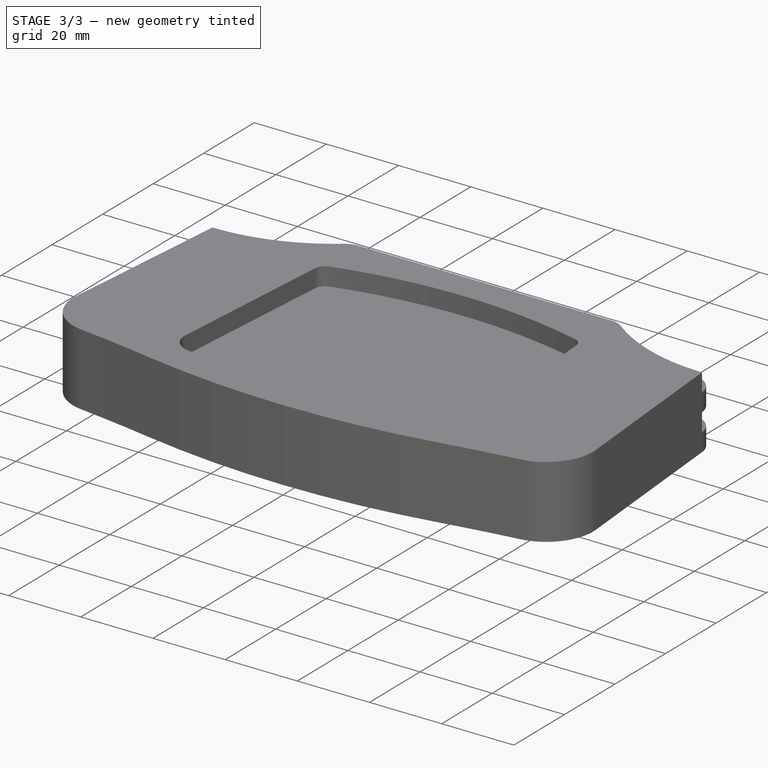
[diagram: stage 3 of 3 — iso view after this stage's code; geometry added in this stage tinted green]
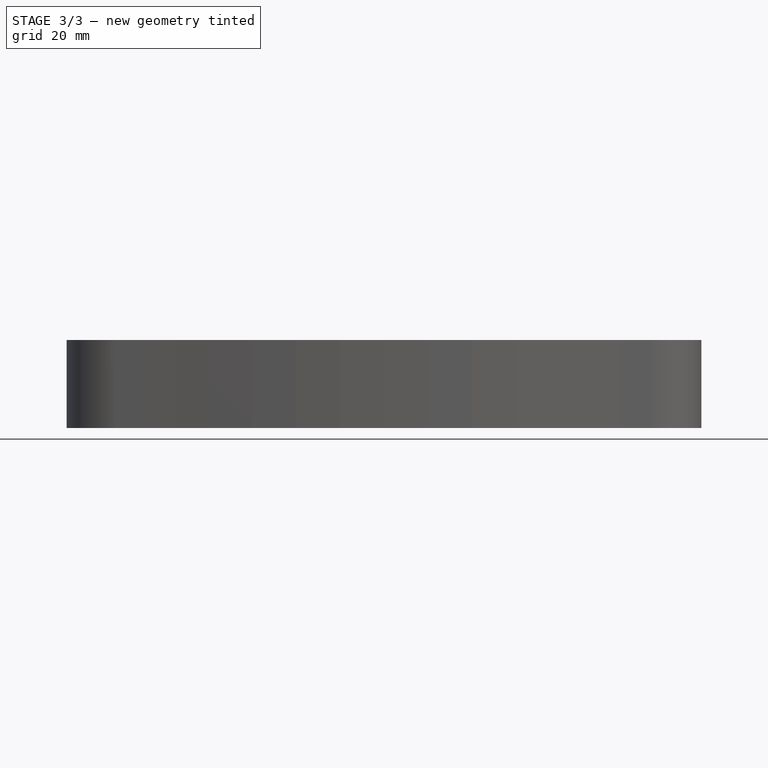
[diagram: stage 3 of 3 — front view after this stage's code; geometry added in this stage tinted green]
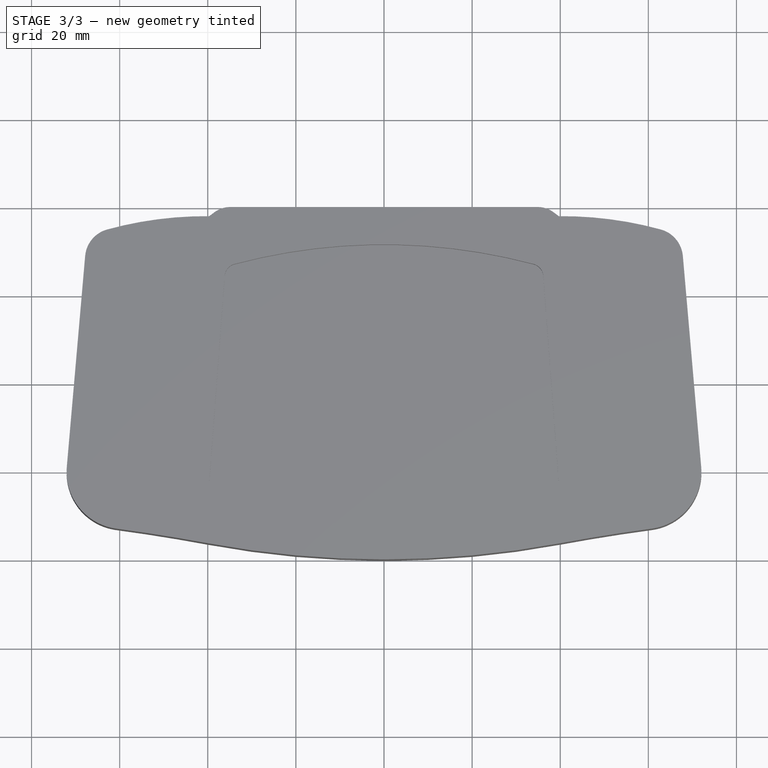
[diagram: stage 3 of 3 — top view after this stage's code; geometry added in this stage tinted green]
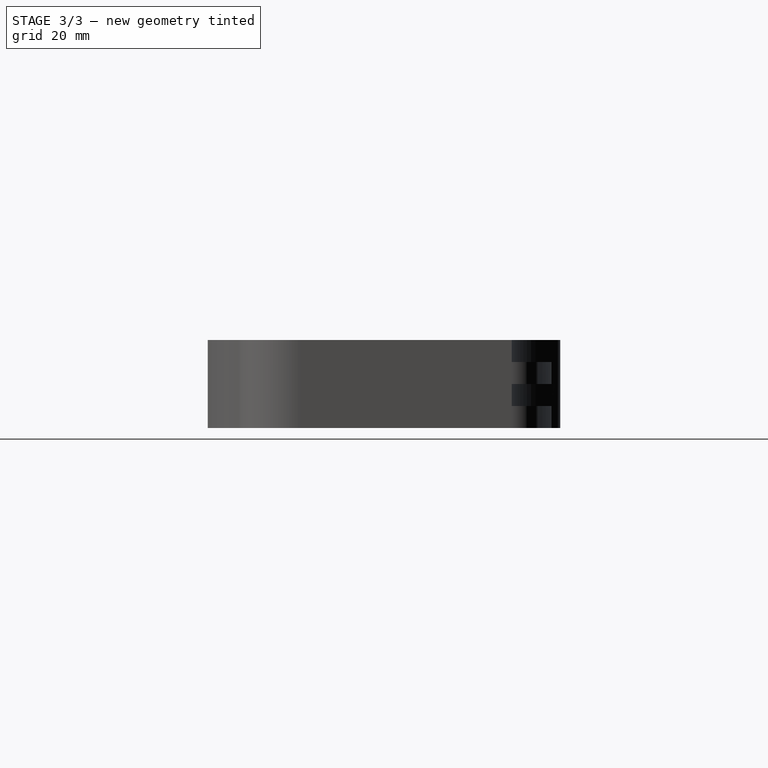
[diagram: stage 3 of 3 — right view after this stage's code; geometry added in this stage tinted green]
FEATURE [PartDesign::Pad] Pad001
  BaseFeature = -> Pocket
  Direction = (1,1,1)
  Length = 4
  Length2 = 100
  Offset = -1
  Profile = -> Pocket [Face33]
  Type = 0
FEATURE [Sketcher::SketchObject] Sketch003
  ExternalGeometry = -> [Pocket]
  FullyConstrained = true
  MapMode = 5
  Placement = pos=(0,0,9) rot=(0,0,1;0rad)
  Support = -> [Pad001]
  sketch-geometry (6):
    g0: LineSegment StartX=0 StartY=8 StartZ=0 EndX=0 EndY=22.5 EndZ=0
    g1: LineSegment StartX=0 StartY=71.5 StartZ=0 EndX=0 EndY=66 EndZ=0
    g2: LineSegment StartX=-31 StartY=66 StartZ=0 EndX=31 EndY=66 EndZ=0
    g3: LineSegment StartX=31 StartY=66 StartZ=0 EndX=31 EndY=22.5 EndZ=0
    g4: LineSegment StartX=31 StartY=22.5 StartZ=0 EndX=-31 EndY=22.5 EndZ=0
    g5: LineSegment StartX=-31 StartY=22.5 StartZ=0 EndX=-31 EndY=66 EndZ=0
  constraints (18):
    c: PointOnObject(g0,g-4)
    c: PointOnObject(g0,g-2)
    c: Vertical(g0)
    c: PointOnObject(g1,g-3)
    c: PointOnObject(g1,g-2)
    c: Vertical(g1)
    c: DistanceY(g1,g1) = 5.5
    c: DistanceY(g0,g0) = 14.5
    c: Coincident(g2,g3)
    c: Coincident(g3,g4)
    c: Coincident(g4,g5)
    c: Coincident(g5,g2)
    c: Horizontal(g2)
    c: Horizontal(g4)
    c: Vertical(g3)
    c: Symmetric(g4,g3,g0)
    c: Symmetric(g2,g2,g1)
    c: DistanceX(g2,g2) = 62
FEATURE [PartDesign::Pocket] Pocket001
  BaseFeature = -> Pad001
  Direction = (1,1,1)
  Length = 1
  Length2 = 100
  Profile = -> Sketch003
  Refine = true
  Type = 0
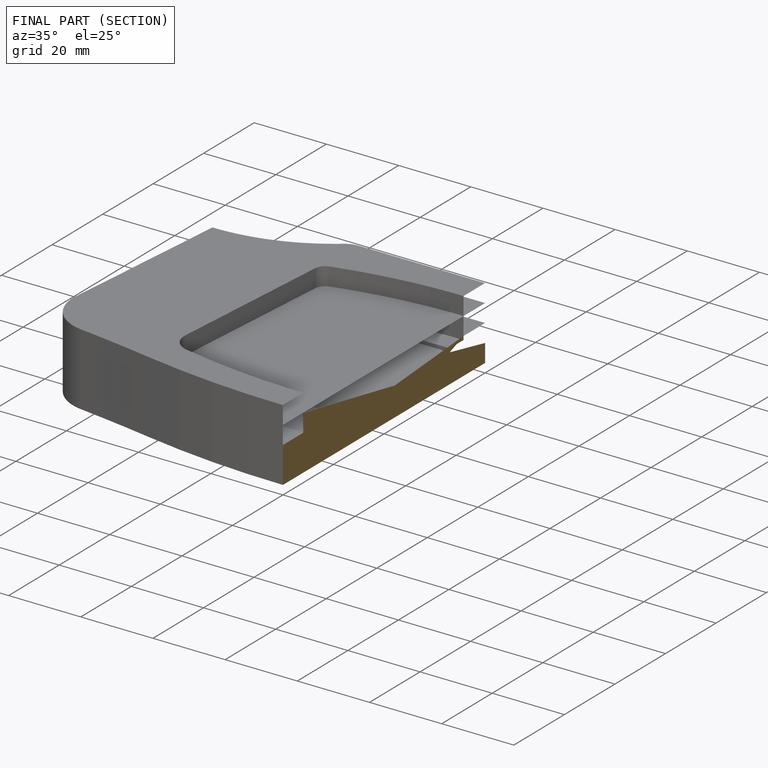
[diagram: finished part — half-section view (interior)]
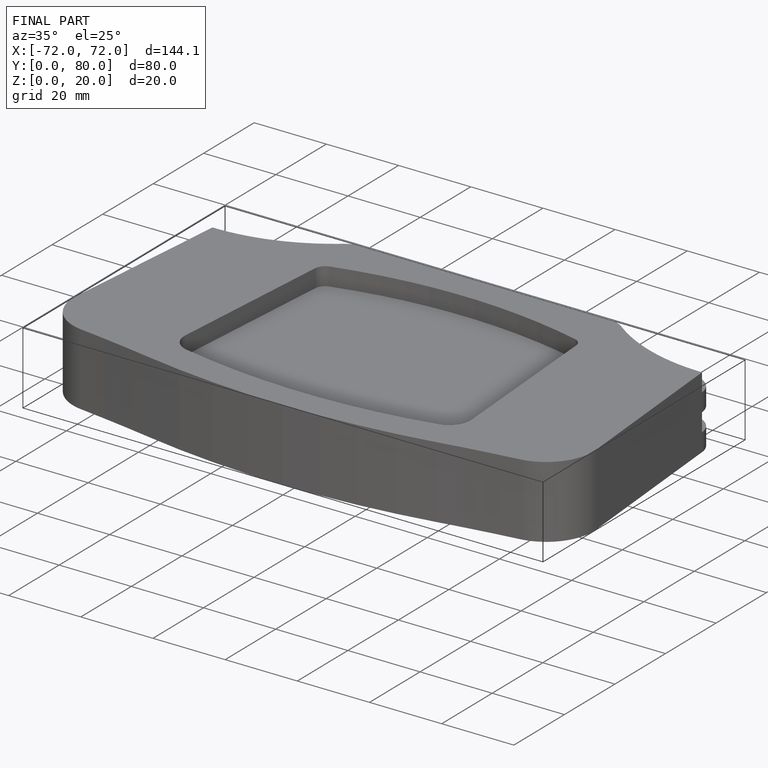
[diagram: finished part — iso view with bounding-box wireframe]
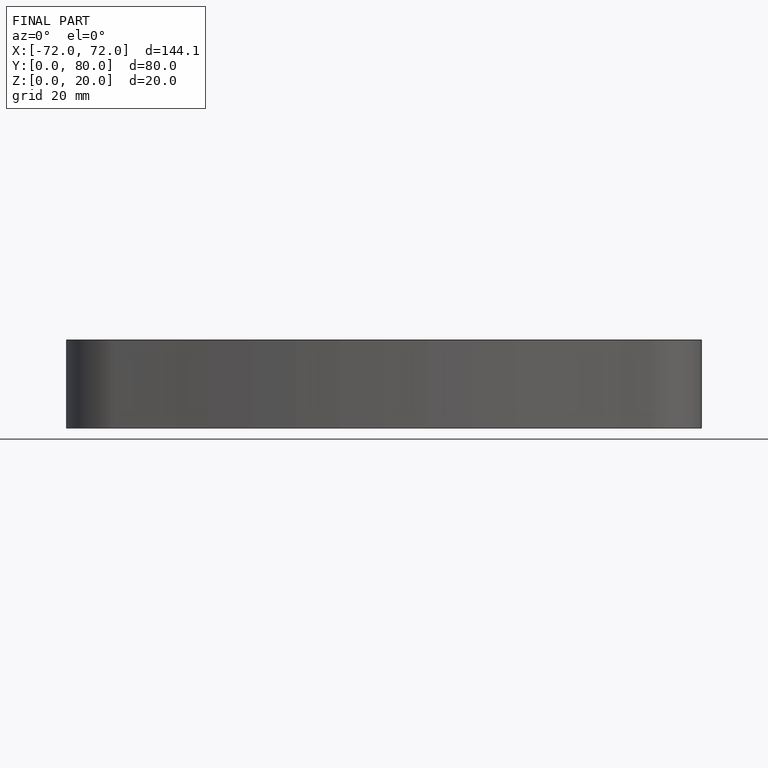
[diagram: finished part — front view with bounding-box wireframe]
